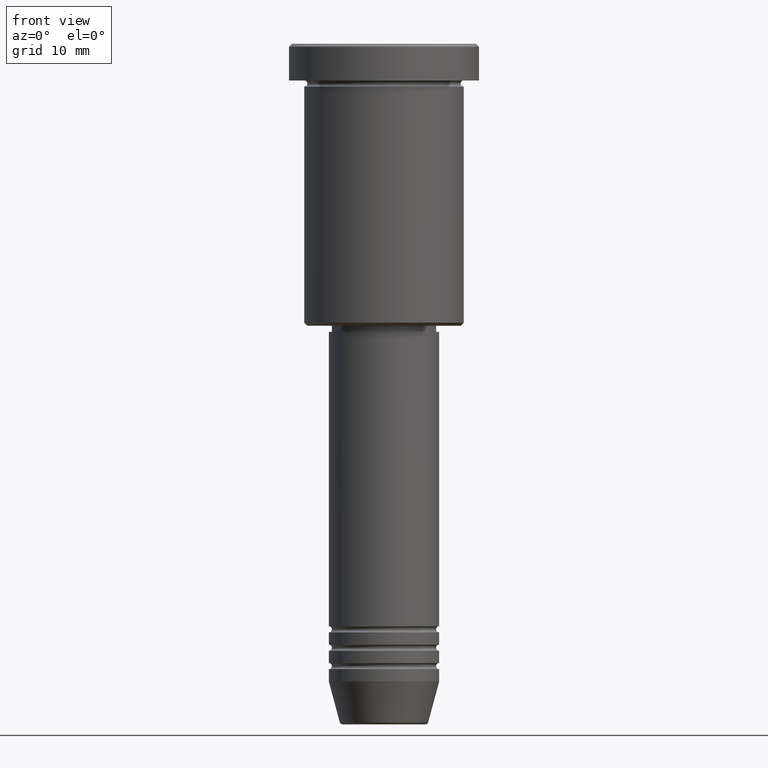
[diagram: clean part render]
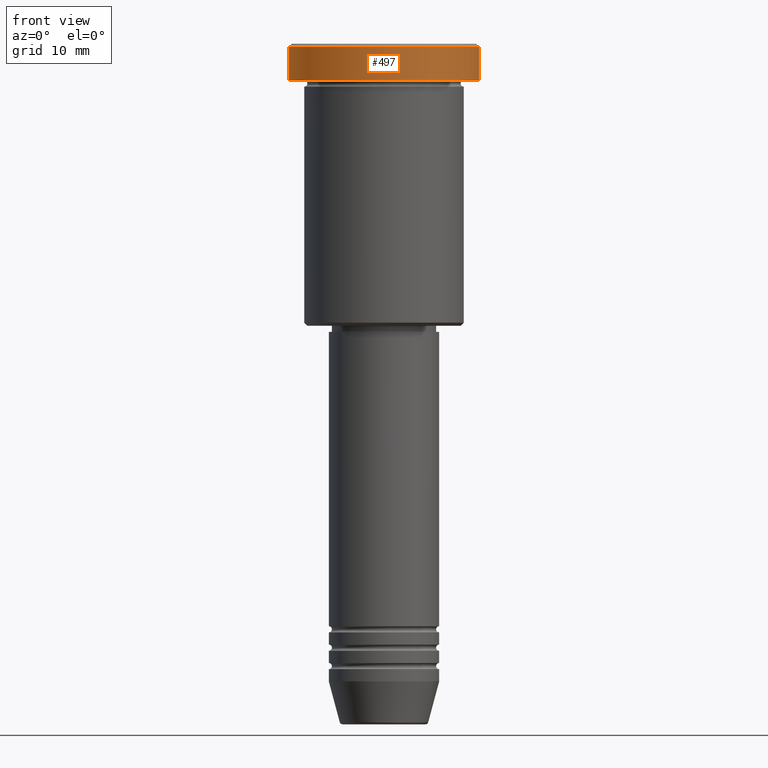
[diagram: same view with one face highlighted and labeled with its STEP entity id]
A machine part, front view. The second image highlights one B-rep face of the part: STEP entity #497.
In plain terms, the highlighted cylindrical surface (partial cylindrical patch) has radius 15.5 mm, axis along (-0, -0, 1).
Its self-contained STEP definition (entity closure, byte-faithful):
#11 = VERTEX_POINT ( 'NONE', #463 ) ;
#42 = DIRECTION ( 'NONE',  ( 1.000000000000000000, 0.000000000000000000, 0.000000000000000000 ) ) ;
#59 = EDGE_CURVE ( 'NONE', #505, #229, #1168, .T. ) ;
#109 = FACE_OUTER_BOUND ( 'NONE', #607, .T. ) ;
#120 = DIRECTION ( 'NONE',  ( -0.000000000000000000, -0.000000000000000000, 1.000000000000000000 ) ) ;
#126 = CIRCLE ( 'NONE', #1098, 15.50000000000000000 ) ;
#129 = LINE ( 'NONE', #590, #1059 ) ;
#229 = VERTEX_POINT ( 'NONE', #329 ) ;
#263 = DIRECTION ( 'NONE',  ( -0.000000000000000000, -0.000000000000000000, 1.000000000000000000 ) ) ;
#286 = ORIENTED_EDGE ( 'NONE', *, *, #672, .T. ) ;
#296 = CARTESIAN_POINT ( 'NONE',  ( -15.50000000000000000, 1.898202538678397557E-15, -5.999999999999995559 ) ) ;
#301 = ORIENTED_EDGE ( 'NONE', *, *, #1124, .T. ) ;
#329 = CARTESIAN_POINT ( 'NONE',  ( 15.50000000000000000, 0.000000000000000000, -5.999999999999995559 ) ) ;
#393 = EDGE_CURVE ( 'NONE', #505, #556, #1090, .T. ) ;
#400 = DIRECTION ( 'NONE',  ( 1.000000000000000000, 0.000000000000000000, 0.000000000000000000 ) ) ;
#412 = DIRECTION ( 'NONE',  ( 1.000000000000000000, 0.000000000000000000, 0.000000000000000000 ) ) ;
#463 = CARTESIAN_POINT ( 'NONE',  ( 15.50000000000000000, 0.000000000000000000, -0.5000000000000125455 ) ) ;
#497 = ADVANCED_FACE ( 'NONE', ( #109 ), #942, .T. ) ;
#505 = VERTEX_POINT ( 'NONE', #296 ) ;
#507 = DIRECTION ( 'NONE',  ( 0.000000000000000000, 0.000000000000000000, -1.000000000000000000 ) ) ;
#556 = VERTEX_POINT ( 'NONE', #748 ) ;
#590 = CARTESIAN_POINT ( 'NONE',  ( 15.50000000000000000, 0.000000000000000000, 0.000000000000000000 ) ) ;
#607 = EDGE_LOOP ( 'NONE', ( #1179, #834, #301, #286 ) ) ;
#610 = CARTESIAN_POINT ( 'NONE',  ( 0.000000000000000000, 0.000000000000000000, -0.5000000000000125455 ) ) ;
#647 = AXIS2_PLACEMENT_3D ( 'NONE', #1034, #120, #400 ) ;
#672 = EDGE_CURVE ( 'NONE', #11, #556, #126, .T. ) ;
#748 = CARTESIAN_POINT ( 'NONE',  ( -15.50000000000000000, 1.898202538678397557E-15, -0.5000000000000125455 ) ) ;
#790 = DIRECTION ( 'NONE',  ( -0.000000000000000000, -0.000000000000000000, 1.000000000000000000 ) ) ;
#804 = VECTOR ( 'NONE', #263, 1000.000000000000000 ) ;
#834 = ORIENTED_EDGE ( 'NONE', *, *, #59, .T. ) ;
#867 = CARTESIAN_POINT ( 'NONE',  ( 0.000000000000000000, 0.000000000000000000, -5.999999999999995559 ) ) ;
#940 = DIRECTION ( 'NONE',  ( -0.000000000000000000, -0.000000000000000000, 1.000000000000000000 ) ) ;
#942 = CYLINDRICAL_SURFACE ( 'NONE', #647, 15.50000000000000000 ) ;
#992 = CARTESIAN_POINT ( 'NONE',  ( -15.50000000000000000, 1.898202538678397557E-15, 0.000000000000000000 ) ) ;
#1034 = CARTESIAN_POINT ( 'NONE',  ( 0.000000000000000000, 0.000000000000000000, 0.000000000000000000 ) ) ;
#1059 = VECTOR ( 'NONE', #790, 1000.000000000000000 ) ;
#1090 = LINE ( 'NONE', #992, #804 ) ;
#1098 = AXIS2_PLACEMENT_3D ( 'NONE', #610, #507, #412 ) ;
#1124 = EDGE_CURVE ( 'NONE', #229, #11, #129, .T. ) ;
#1131 = AXIS2_PLACEMENT_3D ( 'NONE', #867, #940, #42 ) ;
#1168 = CIRCLE ( 'NONE', #1131, 15.50000000000000000 ) ;
#1179 = ORIENTED_EDGE ( 'NONE', *, *, #393, .F. ) ;